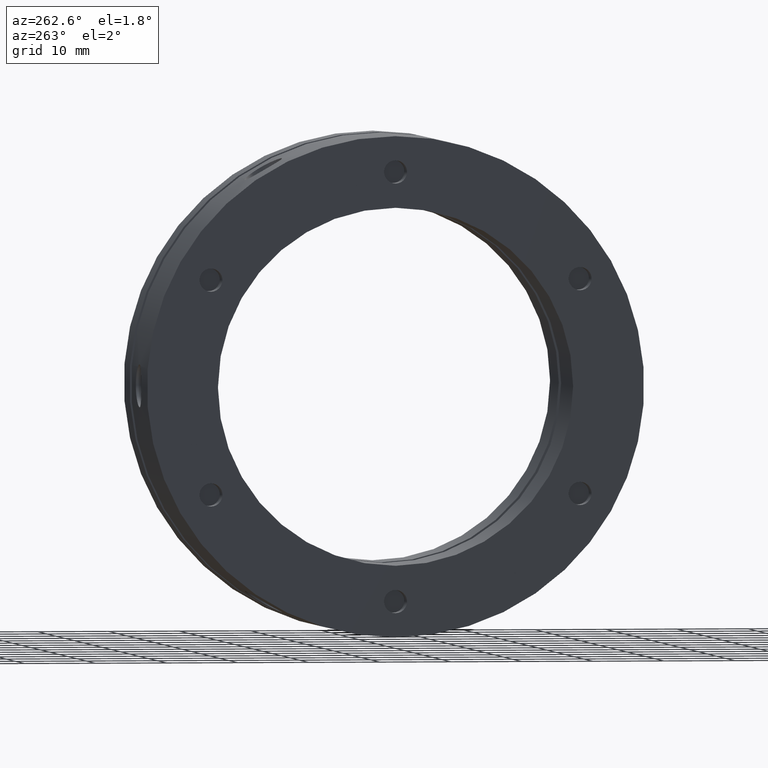
[diagram: clean part render]
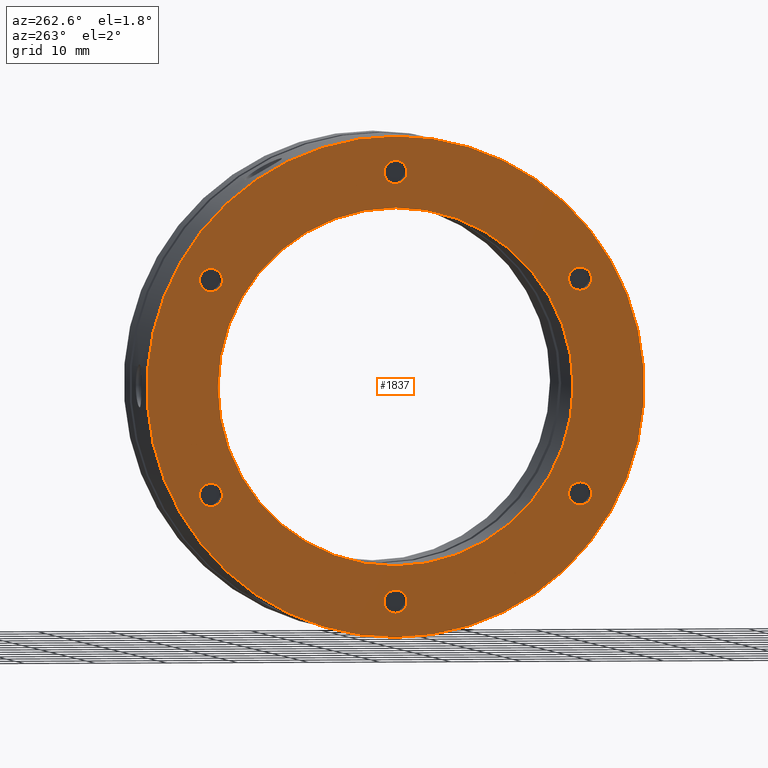
[diagram: same view with one face highlighted and labeled with its STEP entity id]
A machine part, auxiliary view. The second image highlights one B-rep face of the part: STEP entity #1837.
In plain terms, the highlighted planar face has unit normal (-1, 0, 0).
Its self-contained STEP definition (entity closure, byte-faithful):
#32 = AXIS2_PLACEMENT_3D ( 'NONE', #2126, #2127, #2128 ) ;
#41 = AXIS2_PLACEMENT_3D ( 'NONE', #2262, #2263, #2264 ) ;
#44 = AXIS2_PLACEMENT_3D ( 'NONE', #3013, #3014, #3015 ) ;
#47 = AXIS2_PLACEMENT_3D ( 'NONE', #3028, #3029, #3030 ) ;
#49 = AXIS2_PLACEMENT_3D ( 'NONE', #3038, #3039, #3040 ) ;
#51 = AXIS2_PLACEMENT_3D ( 'NONE', #3048, #3049, #3050 ) ;
#54 = AXIS2_PLACEMENT_3D ( 'NONE', #3171, #3172, #3173 ) ;
#56 = AXIS2_PLACEMENT_3D ( 'NONE', #3180, #3181, #3182 ) ;
#191 = AXIS2_PLACEMENT_3D ( 'NONE', #3598, #3595, #3602 ) ;
#275 = CARTESIAN_POINT ( 'NONE',  ( -7.806255641895631900E-015, -25.98076211353316700, -13.37899999999999600 ) ) ;
#276 = CARTESIAN_POINT ( 'NONE',  ( -7.806255641895631900E-015, -25.98076211353316700, -16.62099999999999500 ) ) ;
#397 = EDGE_LOOP ( 'NONE', ( #1307, #1308 ) ) ;
#398 = EDGE_LOOP ( 'NONE', ( #1309, #1310 ) ) ;
#399 = EDGE_LOOP ( 'NONE', ( #1303, #1304 ) ) ;
#422 = EDGE_LOOP ( 'NONE', ( #1311, #1312 ) ) ;
#423 = EDGE_LOOP ( 'NONE', ( #1315, #1316 ) ) ;
#425 = EDGE_LOOP ( 'NONE', ( #1313, #1314 ) ) ;
#426 = EDGE_LOOP ( 'NONE', ( #1301, #1302 ) ) ;
#427 = EDGE_LOOP ( 'NONE', ( #1305, #1306 ) ) ;
#682 = VERTEX_POINT ( 'NONE', #1613 ) ;
#690 = VERTEX_POINT ( 'NONE', #1628 ) ;
#691 = VERTEX_POINT ( 'NONE', #1629 ) ;
#707 = VERTEX_POINT ( 'NONE', #1645 ) ;
#712 = VERTEX_POINT ( 'NONE', #1650 ) ;
#713 = VERTEX_POINT ( 'NONE', #1651 ) ;
#716 = VERTEX_POINT ( 'NONE', #1062 ) ;
#717 = VERTEX_POINT ( 'NONE', #1064 ) ;
#720 = VERTEX_POINT ( 'NONE', #275 ) ;
#721 = VERTEX_POINT ( 'NONE', #276 ) ;
#724 = VERTEX_POINT ( 'NONE', #1873 ) ;
#725 = VERTEX_POINT ( 'NONE', #1874 ) ;
#728 = VERTEX_POINT ( 'NONE', #1877 ) ;
#729 = VERTEX_POINT ( 'NONE', #1878 ) ;
#732 = VERTEX_POINT ( 'NONE', #1881 ) ;
#733 = VERTEX_POINT ( 'NONE', #1882 ) ;
#1062 = CARTESIAN_POINT ( 'NONE',  ( -7.806255641895631900E-015, -25.98076211353316400, 16.62100000000000900 ) ) ;
#1064 = CARTESIAN_POINT ( 'NONE',  ( -7.806255641895631900E-015, -25.98076211353316400, 13.37900000000000800 ) ) ;
#1301 = ORIENTED_EDGE ( 'NONE', *, *, #4680, .T. ) ;
#1302 = ORIENTED_EDGE ( 'NONE', *, *, #1671, .T. ) ;
#1303 = ORIENTED_EDGE ( 'NONE', *, *, #1677, .T. ) ;
#1304 = ORIENTED_EDGE ( 'NONE', *, *, #4679, .T. ) ;
#1305 = ORIENTED_EDGE ( 'NONE', *, *, #1681, .T. ) ;
#1306 = ORIENTED_EDGE ( 'NONE', *, *, #4678, .T. ) ;
#1307 = ORIENTED_EDGE ( 'NONE', *, *, #1685, .T. ) ;
#1308 = ORIENTED_EDGE ( 'NONE', *, *, #4677, .T. ) ;
#1309 = ORIENTED_EDGE ( 'NONE', *, *, #1697, .T. ) ;
#1310 = ORIENTED_EDGE ( 'NONE', *, *, #4676, .T. ) ;
#1311 = ORIENTED_EDGE ( 'NONE', *, *, #1701, .T. ) ;
#1312 = ORIENTED_EDGE ( 'NONE', *, *, #4675, .T. ) ;
#1313 = ORIENTED_EDGE ( 'NONE', *, *, #1413, .T. ) ;
#1314 = ORIENTED_EDGE ( 'NONE', *, *, #4674, .T. ) ;
#1315 = ORIENTED_EDGE ( 'NONE', *, *, #1660, .F. ) ;
#1316 = ORIENTED_EDGE ( 'NONE', *, *, #4685, .F. ) ;
#1413 = EDGE_CURVE ( 'NONE', #732, #733, #2428, .T. ) ;
#1613 = CARTESIAN_POINT ( 'NONE',  ( -8.673617379884035500E-015, 0.0000000000000000000, -35.00000000000000000 ) ) ;
#1628 = CARTESIAN_POINT ( 'NONE',  ( -8.673617379884035500E-015, 4.286263797015736500E-015, 35.00000000000000000 ) ) ;
#1629 = CARTESIAN_POINT ( 'NONE',  ( -6.938893903907228400E-015, 0.0000000000000000000, -25.00000000000000000 ) ) ;
#1645 = CARTESIAN_POINT ( 'NONE',  ( -6.938893903907228400E-015, 3.061616997868383000E-015, 25.00000000000000000 ) ) ;
#1650 = CARTESIAN_POINT ( 'NONE',  ( -7.806255641895631900E-015, 0.0000000000000000000, 31.62100000000000900 ) ) ;
#1651 = CARTESIAN_POINT ( 'NONE',  ( -7.806255641895631900E-015, 1.985152461417858200E-016, 28.37900000000000800 ) ) ;
#1660 = EDGE_CURVE ( 'NONE', #682, #690, #2482, .T. ) ;
#1671 = EDGE_CURVE ( 'NONE', #707, #691, #2487, .T. ) ;
#1677 = EDGE_CURVE ( 'NONE', #712, #713, #2498, .T. ) ;
#1681 = EDGE_CURVE ( 'NONE', #716, #717, #2504, .T. ) ;
#1685 = EDGE_CURVE ( 'NONE', #720, #721, #2510, .T. ) ;
#1697 = EDGE_CURVE ( 'NONE', #724, #725, #2525, .T. ) ;
#1701 = EDGE_CURVE ( 'NONE', #728, #729, #2531, .T. ) ;
#1837 = ADVANCED_FACE ( 'NONE', ( #2824, #2828, #2827, #2826, #2830, #2832, #2833, #2834 ), #3600, .T. ) ;
#1873 = CARTESIAN_POINT ( 'NONE',  ( -7.806255641895631900E-015, -4.440891999999999900E-015, -28.37900000000001600 ) ) ;
#1874 = CARTESIAN_POINT ( 'NONE',  ( -7.806255641895631900E-015, -4.242376753858213700E-015, -31.62100000000001600 ) ) ;
#1877 = CARTESIAN_POINT ( 'NONE',  ( -7.806255641895631900E-015, 25.98076211353316000, -13.37900000000001900 ) ) ;
#1878 = CARTESIAN_POINT ( 'NONE',  ( -7.806255641895631900E-015, 25.98076211353316000, -16.62100000000002000 ) ) ;
#1881 = CARTESIAN_POINT ( 'NONE',  ( -7.806255641895631900E-015, 25.98076211353318100, 16.62099999999998800 ) ) ;
#1882 = CARTESIAN_POINT ( 'NONE',  ( -7.806255641895631900E-015, 25.98076211353318100, 13.37899999999998500 ) ) ;
#2126 = CARTESIAN_POINT ( 'NONE',  ( -7.806255641895631900E-015, 25.98076211353318100, 14.99999999999998600 ) ) ;
#2127 = DIRECTION ( 'NONE',  ( 1.000000000000000000, -0.0000000000000000000, -0.0000000000000000000 ) ) ;
#2128 = DIRECTION ( 'NONE',  ( 0.0000000000000000000, 0.0000000000000000000, 1.000000000000000000 ) ) ;
#2262 = CARTESIAN_POINT ( 'NONE',  ( -8.673617379884035500E-015, 0.0000000000000000000, 0.0000000000000000000 ) ) ;
#2263 = DIRECTION ( 'NONE',  ( 1.000000000000000000, 0.0000000000000000000, 0.0000000000000000000 ) ) ;
#2264 = DIRECTION ( 'NONE',  ( 0.0000000000000000000, 0.0000000000000000000, -1.000000000000000000 ) ) ;
#2428 = CIRCLE ( 'NONE', #32, 1.621000000000000900 ) ;
#2482 = CIRCLE ( 'NONE', #41, 35.00000000000000000 ) ;
#2487 = CIRCLE ( 'NONE', #44, 25.00000000000000000 ) ;
#2498 = CIRCLE ( 'NONE', #47, 1.621000000000000900 ) ;
#2504 = CIRCLE ( 'NONE', #49, 1.621000000000000900 ) ;
#2510 = CIRCLE ( 'NONE', #51, 1.621000000000000900 ) ;
#2525 = CIRCLE ( 'NONE', #54, 1.621000000000000900 ) ;
#2531 = CIRCLE ( 'NONE', #56, 1.621000000000000900 ) ;
#2824 = FACE_BOUND ( 'NONE', #426, .T. ) ;
#2826 = FACE_BOUND ( 'NONE', #397, .T. ) ;
#2827 = FACE_BOUND ( 'NONE', #427, .T. ) ;
#2828 = FACE_BOUND ( 'NONE', #399, .T. ) ;
#2830 = FACE_BOUND ( 'NONE', #398, .T. ) ;
#2832 = FACE_BOUND ( 'NONE', #422, .T. ) ;
#2833 = FACE_BOUND ( 'NONE', #425, .T. ) ;
#2834 = FACE_OUTER_BOUND ( 'NONE', #423, .T. ) ;
#2961 = CIRCLE ( 'NONE', #4072, 1.621000000000000900 ) ;
#2962 = CIRCLE ( 'NONE', #4073, 1.621000000000000900 ) ;
#2963 = CIRCLE ( 'NONE', #4074, 1.621000000000000900 ) ;
#2964 = CIRCLE ( 'NONE', #4075, 1.621000000000000900 ) ;
#2965 = CIRCLE ( 'NONE', #4076, 1.621000000000000900 ) ;
#2966 = CIRCLE ( 'NONE', #4077, 1.621000000000000900 ) ;
#2967 = CIRCLE ( 'NONE', #4078, 25.00000000000000000 ) ;
#2970 = CIRCLE ( 'NONE', #4080, 35.00000000000000000 ) ;
#3013 = CARTESIAN_POINT ( 'NONE',  ( -6.938893903907228400E-015, 0.0000000000000000000, 0.0000000000000000000 ) ) ;
#3014 = DIRECTION ( 'NONE',  ( 1.000000000000000000, 0.0000000000000000000, 0.0000000000000000000 ) ) ;
#3015 = DIRECTION ( 'NONE',  ( 0.0000000000000000000, 0.0000000000000000000, -1.000000000000000000 ) ) ;
#3028 = CARTESIAN_POINT ( 'NONE',  ( -7.806255641895631900E-015, 0.0000000000000000000, 30.00000000000001100 ) ) ;
#3029 = DIRECTION ( 'NONE',  ( 1.000000000000000000, -0.0000000000000000000, -0.0000000000000000000 ) ) ;
#3030 = DIRECTION ( 'NONE',  ( 0.0000000000000000000, 0.0000000000000000000, 1.000000000000000000 ) ) ;
#3038 = CARTESIAN_POINT ( 'NONE',  ( -7.806255641895631900E-015, -25.98076211353316400, 15.00000000000001100 ) ) ;
#3039 = DIRECTION ( 'NONE',  ( 1.000000000000000000, -0.0000000000000000000, -0.0000000000000000000 ) ) ;
#3040 = DIRECTION ( 'NONE',  ( 0.0000000000000000000, 0.0000000000000000000, 1.000000000000000000 ) ) ;
#3048 = CARTESIAN_POINT ( 'NONE',  ( -7.806255641895631900E-015, -25.98076211353316700, -14.99999999999999800 ) ) ;
#3049 = DIRECTION ( 'NONE',  ( 1.000000000000000000, -0.0000000000000000000, -0.0000000000000000000 ) ) ;
#3050 = DIRECTION ( 'NONE',  ( 0.0000000000000000000, 0.0000000000000000000, 1.000000000000000000 ) ) ;
#3171 = CARTESIAN_POINT ( 'NONE',  ( -7.806255641895631900E-015, -4.440891999999999900E-015, -30.00000000000001800 ) ) ;
#3172 = DIRECTION ( 'NONE',  ( 1.000000000000000000, -0.0000000000000000000, -0.0000000000000000000 ) ) ;
#3173 = DIRECTION ( 'NONE',  ( 0.0000000000000000000, 0.0000000000000000000, 1.000000000000000000 ) ) ;
#3180 = CARTESIAN_POINT ( 'NONE',  ( -7.806255641895631900E-015, 25.98076211353316000, -15.00000000000002000 ) ) ;
#3181 = DIRECTION ( 'NONE',  ( 1.000000000000000000, -0.0000000000000000000, -0.0000000000000000000 ) ) ;
#3182 = DIRECTION ( 'NONE',  ( 0.0000000000000000000, 0.0000000000000000000, 1.000000000000000000 ) ) ;
#3595 = DIRECTION ( 'NONE',  ( -1.000000000000000000, 0.0000000000000000000, 0.0000000000000000000 ) ) ;
#3598 = CARTESIAN_POINT ( 'NONE',  ( -7.821087000000001600E-015, 30.00000000000000000, 0.0000000000000000000 ) ) ;
#3600 = PLANE ( 'NONE',  #191 ) ;
#3602 = DIRECTION ( 'NONE',  ( 0.0000000000000000000, 0.0000000000000000000, 1.000000000000000000 ) ) ;
#3815 = CARTESIAN_POINT ( 'NONE',  ( -7.806255641895631900E-015, 25.98076211353318100, 14.99999999999998600 ) ) ;
#3816 = DIRECTION ( 'NONE',  ( 1.000000000000000000, -0.0000000000000000000, -0.0000000000000000000 ) ) ;
#3817 = DIRECTION ( 'NONE',  ( 0.0000000000000000000, 0.0000000000000000000, 1.000000000000000000 ) ) ;
#3818 = CARTESIAN_POINT ( 'NONE',  ( -7.806255641895631900E-015, 25.98076211353316000, -15.00000000000002000 ) ) ;
#3819 = DIRECTION ( 'NONE',  ( 1.000000000000000000, -0.0000000000000000000, -0.0000000000000000000 ) ) ;
#3820 = DIRECTION ( 'NONE',  ( 0.0000000000000000000, 0.0000000000000000000, 1.000000000000000000 ) ) ;
#3821 = CARTESIAN_POINT ( 'NONE',  ( -7.806255641895631900E-015, -4.440891999999999900E-015, -30.00000000000001800 ) ) ;
#3822 = DIRECTION ( 'NONE',  ( 1.000000000000000000, -0.0000000000000000000, -0.0000000000000000000 ) ) ;
#3823 = DIRECTION ( 'NONE',  ( 0.0000000000000000000, 0.0000000000000000000, 1.000000000000000000 ) ) ;
#3824 = CARTESIAN_POINT ( 'NONE',  ( -7.806255641895631900E-015, -25.98076211353316700, -14.99999999999999800 ) ) ;
#3825 = DIRECTION ( 'NONE',  ( 1.000000000000000000, -0.0000000000000000000, -0.0000000000000000000 ) ) ;
#3826 = DIRECTION ( 'NONE',  ( 0.0000000000000000000, 0.0000000000000000000, 1.000000000000000000 ) ) ;
#3827 = CARTESIAN_POINT ( 'NONE',  ( -7.806255641895631900E-015, -25.98076211353316400, 15.00000000000001100 ) ) ;
#3828 = DIRECTION ( 'NONE',  ( 1.000000000000000000, -0.0000000000000000000, -0.0000000000000000000 ) ) ;
#3829 = DIRECTION ( 'NONE',  ( 0.0000000000000000000, 0.0000000000000000000, 1.000000000000000000 ) ) ;
#3830 = CARTESIAN_POINT ( 'NONE',  ( -7.806255641895631900E-015, 0.0000000000000000000, 30.00000000000001100 ) ) ;
#3831 = DIRECTION ( 'NONE',  ( 1.000000000000000000, -0.0000000000000000000, -0.0000000000000000000 ) ) ;
#3832 = DIRECTION ( 'NONE',  ( 0.0000000000000000000, 0.0000000000000000000, 1.000000000000000000 ) ) ;
#3834 = CARTESIAN_POINT ( 'NONE',  ( -6.938893903907228400E-015, 0.0000000000000000000, 0.0000000000000000000 ) ) ;
#3835 = DIRECTION ( 'NONE',  ( 1.000000000000000000, 0.0000000000000000000, 0.0000000000000000000 ) ) ;
#3836 = DIRECTION ( 'NONE',  ( 0.0000000000000000000, 0.0000000000000000000, -1.000000000000000000 ) ) ;
#3943 = CARTESIAN_POINT ( 'NONE',  ( -8.673617379884035500E-015, 0.0000000000000000000, 0.0000000000000000000 ) ) ;
#3944 = DIRECTION ( 'NONE',  ( 1.000000000000000000, 0.0000000000000000000, 0.0000000000000000000 ) ) ;
#3945 = DIRECTION ( 'NONE',  ( 0.0000000000000000000, 0.0000000000000000000, -1.000000000000000000 ) ) ;
#4072 = AXIS2_PLACEMENT_3D ( 'NONE', #3815, #3816, #3817 ) ;
#4073 = AXIS2_PLACEMENT_3D ( 'NONE', #3818, #3819, #3820 ) ;
#4074 = AXIS2_PLACEMENT_3D ( 'NONE', #3821, #3822, #3823 ) ;
#4075 = AXIS2_PLACEMENT_3D ( 'NONE', #3824, #3825, #3826 ) ;
#4076 = AXIS2_PLACEMENT_3D ( 'NONE', #3827, #3828, #3829 ) ;
#4077 = AXIS2_PLACEMENT_3D ( 'NONE', #3830, #3831, #3832 ) ;
#4078 = AXIS2_PLACEMENT_3D ( 'NONE', #3834, #3835, #3836 ) ;
#4080 = AXIS2_PLACEMENT_3D ( 'NONE', #3943, #3944, #3945 ) ;
#4674 = EDGE_CURVE ( 'NONE', #733, #732, #2961, .T. ) ;
#4675 = EDGE_CURVE ( 'NONE', #729, #728, #2962, .T. ) ;
#4676 = EDGE_CURVE ( 'NONE', #725, #724, #2963, .T. ) ;
#4677 = EDGE_CURVE ( 'NONE', #721, #720, #2964, .T. ) ;
#4678 = EDGE_CURVE ( 'NONE', #717, #716, #2965, .T. ) ;
#4679 = EDGE_CURVE ( 'NONE', #713, #712, #2966, .T. ) ;
#4680 = EDGE_CURVE ( 'NONE', #691, #707, #2967, .T. ) ;
#4685 = EDGE_CURVE ( 'NONE', #690, #682, #2970, .T. ) ;